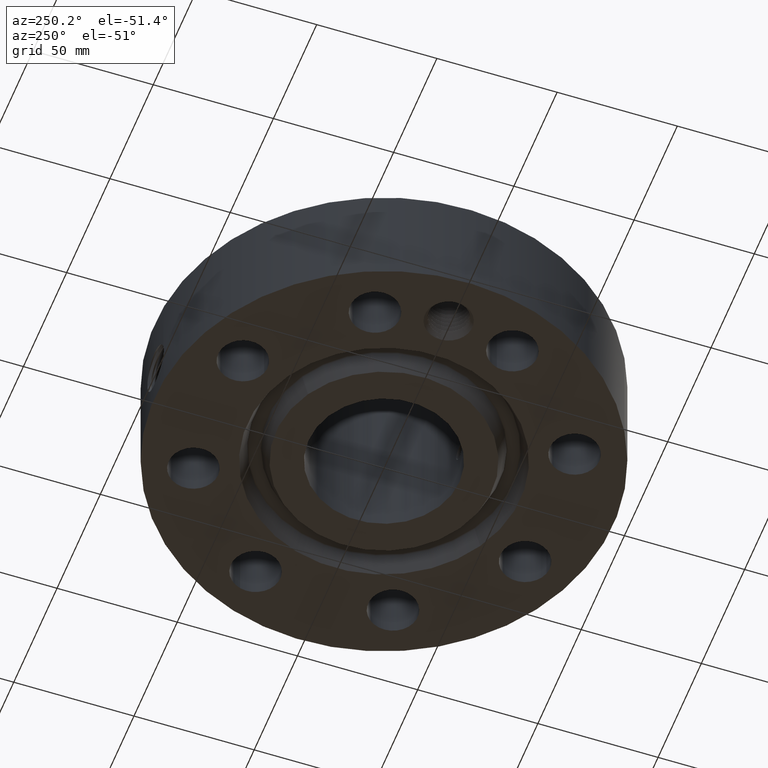
[diagram: clean part render]
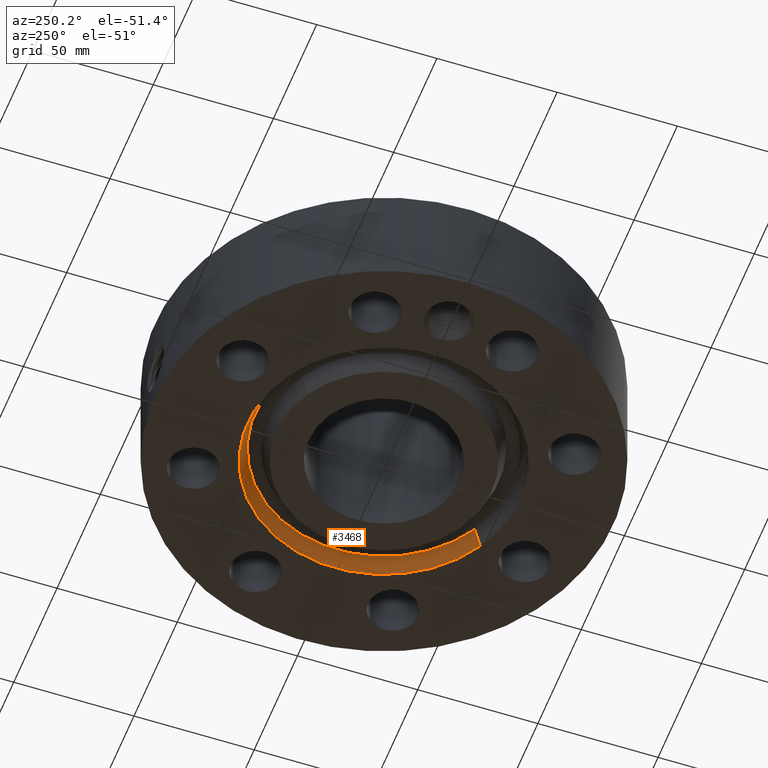
[diagram: same view with one face highlighted and labeled with its STEP entity id]
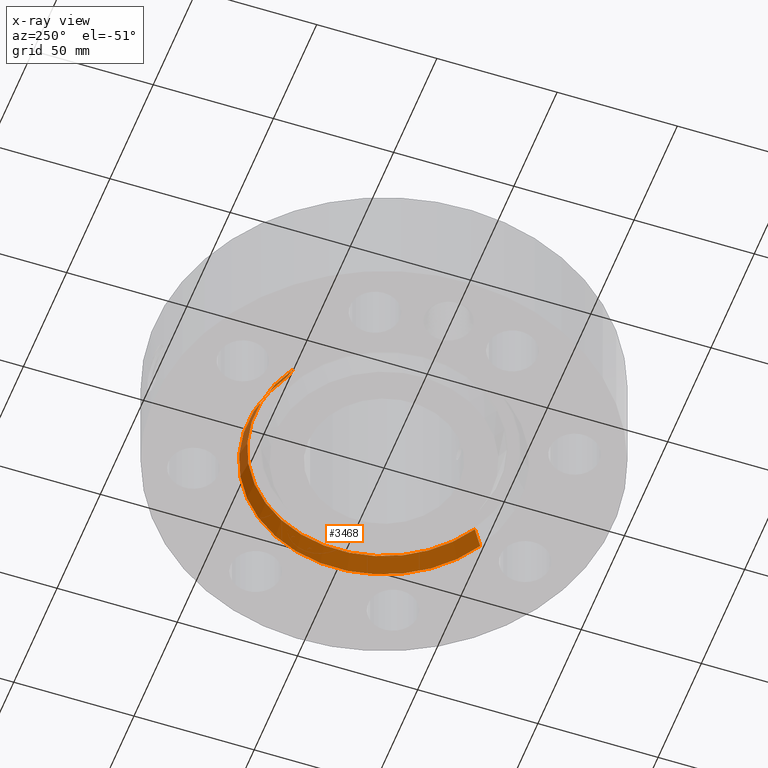
[diagram: x-ray of the same camera — body ghosted, the highlighted face saturated]
A machine part, auxiliary view. The second image highlights one B-rep face of the part: STEP entity #3468.
The next image is the same camera in x-ray: the body ghosted, the highlighted face saturated — about 0% of this face is hidden behind the body in this view.
In plain terms, the highlighted conical surface has half-angle 23 deg.
Its self-contained STEP definition (entity closure, byte-faithful):
#2613=AXIS2_PLACEMENT_3D('Circle Axis2P3D',#2611,#2612,$) ;
#3441=AXIS2_PLACEMENT_3D('Cone Axis2P3D',#3438,#3439,#3440) ;
#3445=AXIS2_PLACEMENT_3D('Circle Axis2P3D',#3443,#3444,$) ;
#2611=CARTESIAN_POINT('Axis2P3D Location',(0.,0.,0.294112664984)) ;
#2615=CARTESIAN_POINT('Vertex',(1.01142324242,-1.85139782671,0.294112664984)) ;
#2617=CARTESIAN_POINT('Vertex',(-1.01142324242,1.85139782671,0.294112664984)) ;
#3438=CARTESIAN_POINT('Axis2P3D Location',(0.,0.,0.294112664984)) ;
#3443=CARTESIAN_POINT('Axis2P3D Location',(0.,0.,3.49676543189E-017)) ;
#3447=CARTESIAN_POINT('Vertex',(-1.07127636602,1.96095823455,3.49676543189E-017)) ;
#3449=CARTESIAN_POINT('Vertex',(1.07127636602,-1.96095823455,3.49676543189E-017)) ;
#3452=CARTESIAN_POINT('Line Origine',(1.04134980422,-1.90617803063,0.147056332492)) ;
#3457=CARTESIAN_POINT('Line Origine',(-1.04134980422,1.90617803063,0.147056332492)) ;
#2612=DIRECTION('Axis2P3D Direction',(0.,0.,0.0393700787402)) ;
#3439=DIRECTION('Axis2P3D Direction',(-0.,-0.,-0.0393700787402)) ;
#3440=DIRECTION('Axis2P3D XDirection',(0.0188750212049,-0.0345504945626,0.)) ;
#3444=DIRECTION('Axis2P3D Direction',(0.,0.,-0.0393700787402)) ;
#3453=DIRECTION('Vector Direction',(0.00737505833565,-0.0134999537303,-0.0362403485611)) ;
#3458=DIRECTION('Vector Direction',(-0.00737505833565,0.0134999537303,-0.0362403485611)) ;
#3454=VECTOR('Line Direction',#3453,0.0393700787402) ;
#3459=VECTOR('Line Direction',#3458,0.0393700787402) ;
#3463=ORIENTED_EDGE('',*,*,#3451,.T.) ;
#3464=ORIENTED_EDGE('',*,*,#3456,.T.) ;
#3465=ORIENTED_EDGE('',*,*,#2619,.T.) ;
#3466=ORIENTED_EDGE('',*,*,#3461,.F.) ;
#3468=ADVANCED_FACE('PartBody',(#3467),#3442,.F.) ;
#2614=CIRCLE('generated circle',#2613,2.10965658059) ;
#3446=CIRCLE('generated circle',#3445,2.23450000001) ;
#3442=CONICAL_SURFACE('Cone',#3441,2.10965658059,0.401425727959) ;
#2619=EDGE_CURVE('',#2616,#2618,#2614,.T.) ;
#3451=EDGE_CURVE('',#3448,#3450,#3446,.T.) ;
#3456=EDGE_CURVE('',#3450,#2616,#3455,.F.) ;
#3461=EDGE_CURVE('',#3448,#2618,#3460,.F.) ;
#3462=EDGE_LOOP('',(#3463,#3464,#3465,#3466)) ;
#3467=FACE_OUTER_BOUND('',#3462,.T.) ;
#3455=LINE('Line',#3452,#3454) ;
#3460=LINE('Line',#3457,#3459) ;
#2616=VERTEX_POINT('',#2615) ;
#2618=VERTEX_POINT('',#2617) ;
#3448=VERTEX_POINT('',#3447) ;
#3450=VERTEX_POINT('',#3449) ;